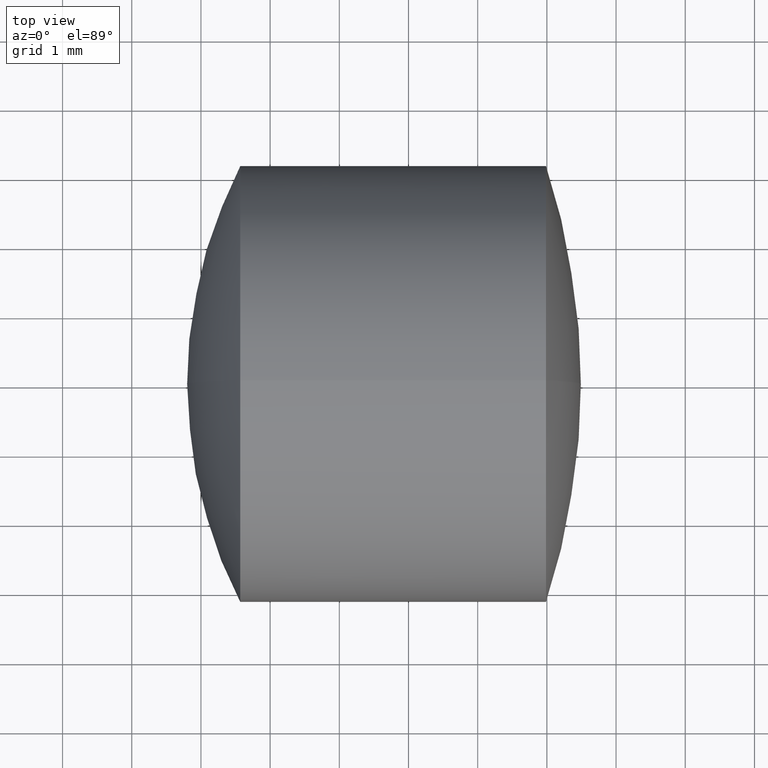
[diagram: clean part render]
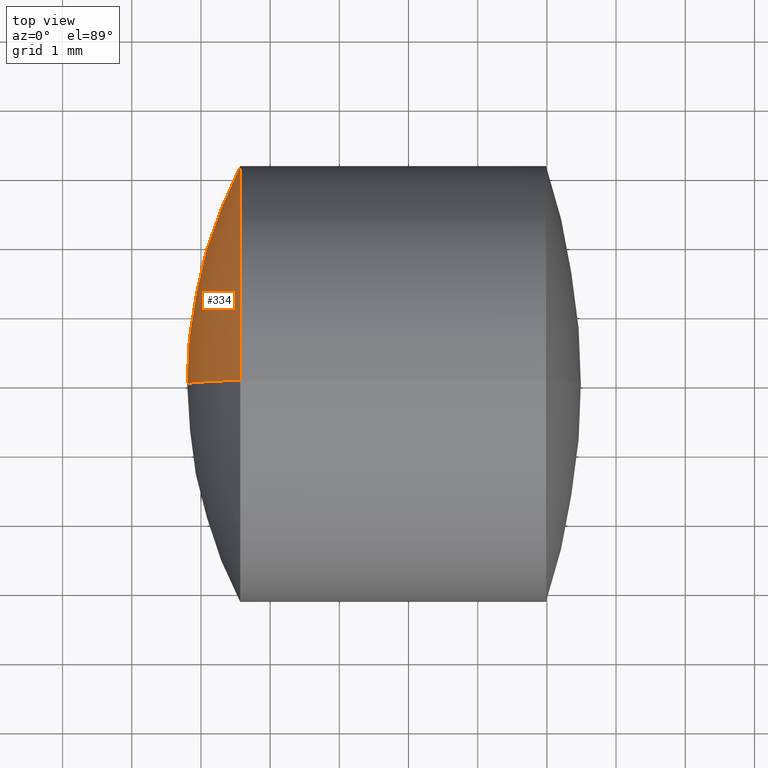
[diagram: same view with one face highlighted and labeled with its STEP entity id]
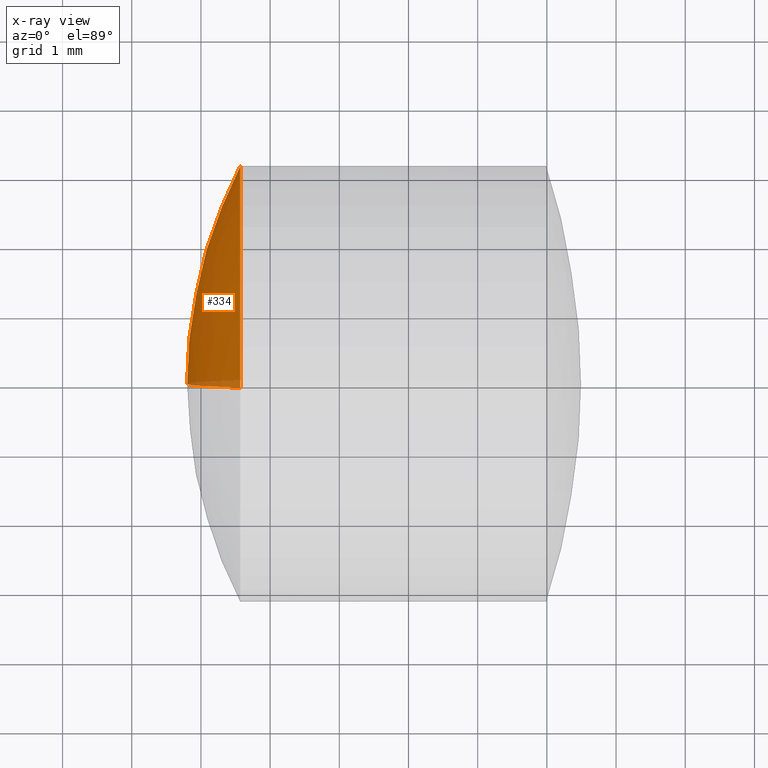
[diagram: x-ray of the same camera — body ghosted, the highlighted face saturated]
A machine part, top view. The second image highlights one B-rep face of the part: STEP entity #334.
The next image is the same camera in x-ray: the body ghosted, the highlighted face saturated — about 3% of this face is hidden behind the body in this view.
In plain terms, the highlighted spherical surface has radius 6.848 mm.
Its self-contained STEP definition (entity closure, byte-faithful):
#10 = ORIENTED_EDGE ( 'NONE', *, *, #256, .T. ) ;
#17 = VERTEX_POINT ( 'NONE', #340 ) ;
#23 = CARTESIAN_POINT ( 'NONE',  ( 2.568094163968829100, 0.0000000000000000000, 0.0000000000000000000 ) ) ;
#31 = AXIS2_PLACEMENT_3D ( 'NONE', #166, #226, #32 ) ;
#32 = DIRECTION ( 'NONE',  ( 0.0000000000000000000, -1.224646799147353200E-016, 1.000000000000000000 ) ) ;
#46 = VERTEX_POINT ( 'NONE', #290 ) ;
#48 = EDGE_CURVE ( 'NONE', #17, #46, #182, .T. ) ;
#51 = DIRECTION ( 'NONE',  ( 0.0000000000000000000, 0.0000000000000000000, 1.000000000000000000 ) ) ;
#62 = CIRCLE ( 'NONE', #116, 3.149999999999999900 ) ;
#70 = DIRECTION ( 'NONE',  ( 0.0000000000000000000, 0.0000000000000000000, -1.000000000000000000 ) ) ;
#74 = CARTESIAN_POINT ( 'NONE',  ( 2.568094163968829100, 3.857637417314162200E-016, -3.149999999999999900 ) ) ;
#114 = CIRCLE ( 'NONE', #31, 6.847999999999999900 ) ;
#116 = AXIS2_PLACEMENT_3D ( 'NONE', #23, #218, #51 ) ;
#132 = ORIENTED_EDGE ( 'NONE', *, *, #205, .T. ) ;
#139 = DIRECTION ( 'NONE',  ( 0.0000000000000000000, 1.000000000000000000, 0.0000000000000000000 ) ) ;
#148 = VERTEX_POINT ( 'NONE', #74 ) ;
#155 = ORIENTED_EDGE ( 'NONE', *, *, #48, .F. ) ;
#162 = CARTESIAN_POINT ( 'NONE',  ( 8.648604339932685300, 0.0000000000000000000, -5.419542352614500500E-019 ) ) ;
#166 = CARTESIAN_POINT ( 'NONE',  ( 8.648604339932685300, 0.0000000000000000000, -5.419542352614500500E-019 ) ) ;
#182 = CIRCLE ( 'NONE', #285, 6.847999999999999900 ) ;
#193 = SPHERICAL_SURFACE ( 'NONE', #259, 6.847999999999999900 ) ;
#200 = EDGE_LOOP ( 'NONE', ( #132, #10, #155 ) ) ;
#202 = DIRECTION ( 'NONE',  ( 0.0000000000000000000, -1.000000000000000000, 0.0000000000000000000 ) ) ;
#205 = EDGE_CURVE ( 'NONE', #17, #148, #62, .T. ) ;
#218 = DIRECTION ( 'NONE',  ( -1.000000000000000000, -0.0000000000000000000, -0.0000000000000000000 ) ) ;
#226 = DIRECTION ( 'NONE',  ( -0.0000000000000000000, 1.000000000000000000, 1.224646799147353200E-016 ) ) ;
#233 = CARTESIAN_POINT ( 'NONE',  ( 8.648604339932685300, 0.0000000000000000000, -5.419542352614500500E-019 ) ) ;
#256 = EDGE_CURVE ( 'NONE', #148, #46, #114, .T. ) ;
#259 = AXIS2_PLACEMENT_3D ( 'NONE', #162, #139, #331 ) ;
#272 = FACE_OUTER_BOUND ( 'NONE', #200, .T. ) ;
#285 = AXIS2_PLACEMENT_3D ( 'NONE', #233, #202, #70 ) ;
#290 = CARTESIAN_POINT ( 'NONE',  ( 1.800604339932685200, 0.0000000000000000000, 4.187771097927922700E-016 ) ) ;
#331 = DIRECTION ( 'NONE',  ( 0.0000000000000000000, 0.0000000000000000000, 1.000000000000000000 ) ) ;
#334 = ADVANCED_FACE ( 'NONE', ( #272 ), #193, .T. ) ;
#340 = CARTESIAN_POINT ( 'NONE',  ( 2.568094163968829100, 0.0000000000000000000, 3.149999999999999900 ) ) ;